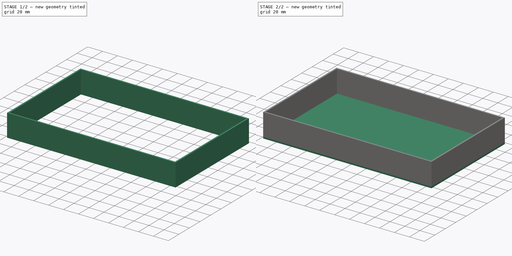
[diagram: build sequence overview — one tinted view per stage of 2, left to right]
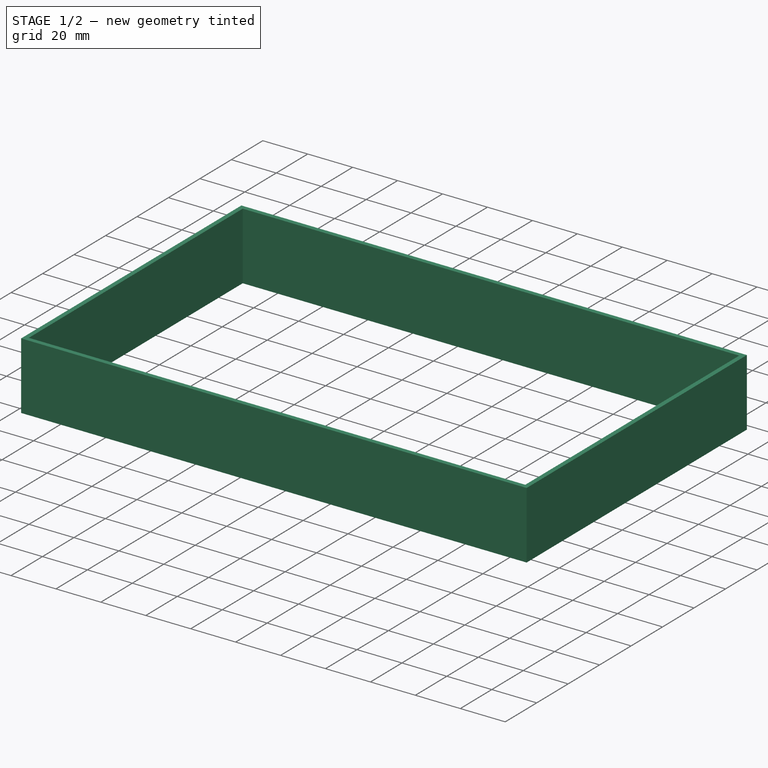
[diagram: stage 1 of 2 — iso view after this stage's code; geometry added in this stage tinted green]
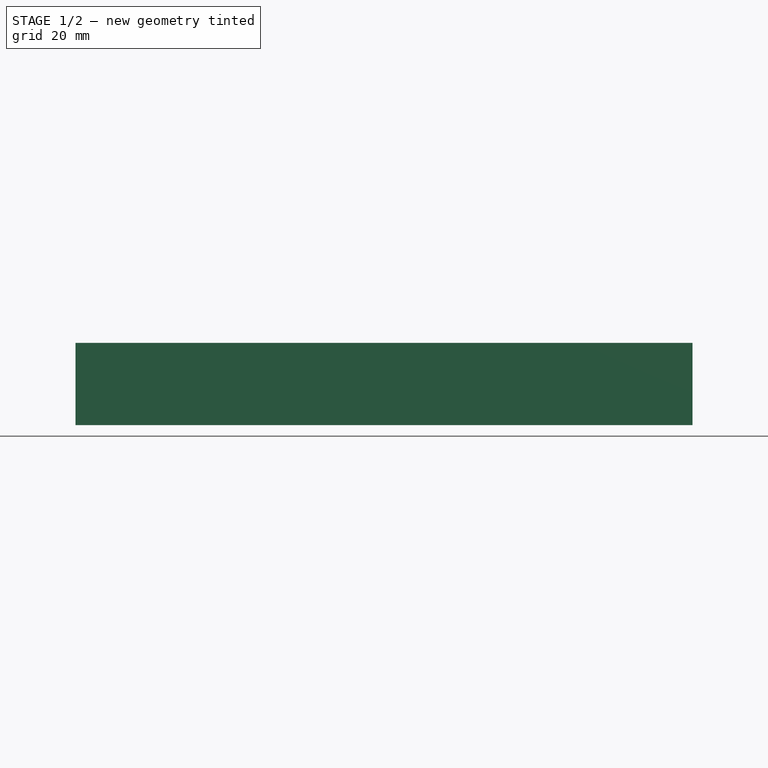
[diagram: stage 1 of 2 — front view after this stage's code; geometry added in this stage tinted green]
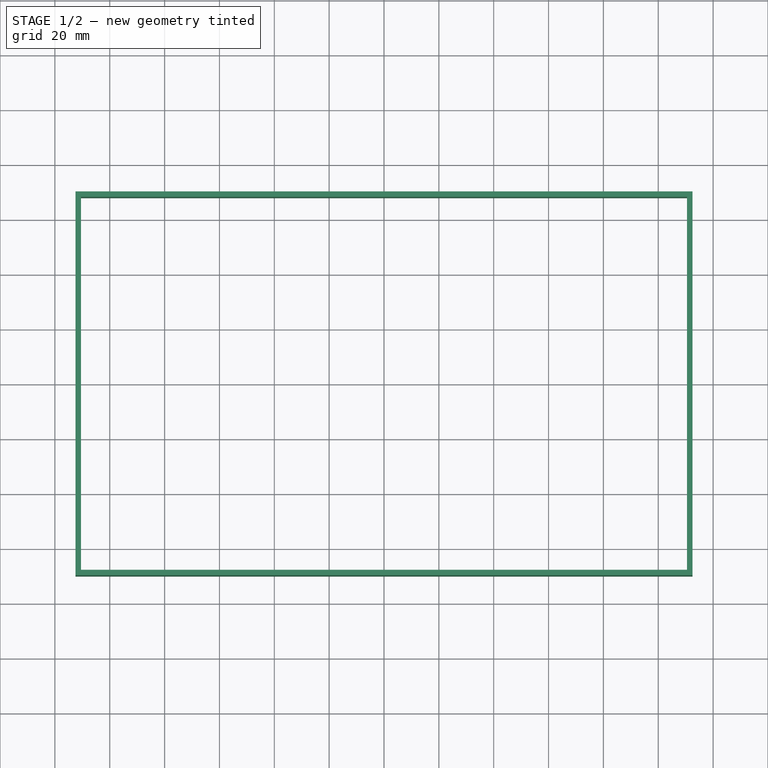
[diagram: stage 1 of 2 — top view after this stage's code; geometry added in this stage tinted green]
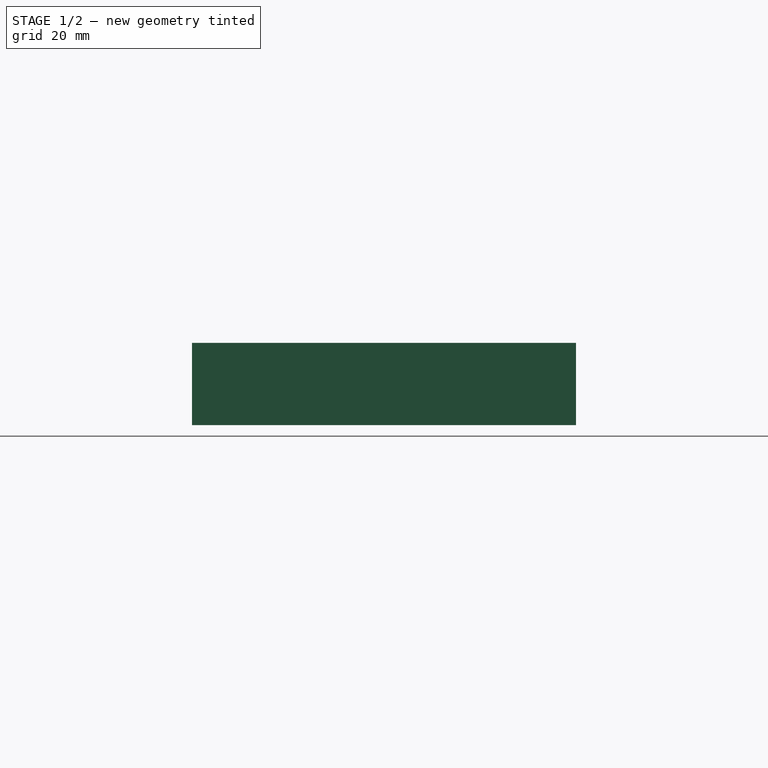
[diagram: stage 1 of 2 — right view after this stage's code; geometry added in this stage tinted green]
FCSTD DOCUMENT  (FreeCAD 0.14R3702 (Git))
Label: car stereo case
License: CC-BY 3.0
LicenseURL: http://creativecommons.org/licenses/by/3.0/
objects: Sketcher::SketchObject×2, PartDesign::Pad×2
note: 6 computed .brp shape members not serialized (recipe doc carries the construction recipe); baked Part::Feature solids carry a one-line shape summary decoded from their .brp

FEATURE [Sketcher::SketchObject] Sketch001  label="sides"
  Placement = pos=(0,0,2) rot=(0,0,1;0rad)
  sketch-geometry (8):
    g0: LineSegment StartX=-112.5 StartY=70 StartZ=0 EndX=112.5 EndY=70 EndZ=0
    g1: LineSegment StartX=112.5 StartY=70 StartZ=0 EndX=112.5 EndY=-70 EndZ=0
    g2: LineSegment StartX=112.5 StartY=-70 StartZ=0 EndX=-112.5 EndY=-70 EndZ=0
    g3: LineSegment StartX=-112.5 StartY=-70 StartZ=0 EndX=-112.5 EndY=70 EndZ=0
    g4: LineSegment StartX=-110.5 StartY=68 StartZ=0 EndX=110.5 EndY=68 EndZ=0
    g5: LineSegment StartX=110.5 StartY=68 StartZ=0 EndX=110.5 EndY=-68 EndZ=0
    g6: LineSegment StartX=110.5 StartY=-68 StartZ=0 EndX=-110.5 EndY=-68 EndZ=0
    g7: LineSegment StartX=-110.5 StartY=-68 StartZ=0 EndX=-110.5 EndY=68 EndZ=0
  constraints (24):
    c: Coincident(g0,g1)
    c: Coincident(g1,g2)
    c: Coincident(g2,g3)
    c: Coincident(g3,g0)
    c: Horizontal(g0)
    c: Horizontal(g2)
    c: Vertical(g1)
    c: Vertical(g3)
    c: Symmetric(g1,g2,g-2)
    c: Symmetric(g0,g2,g-1)
    c: DistanceX(g0) = 225
    c: DistanceY(g1) = -140
    c: Coincident(g4,g5)
    c: Coincident(g5,g6)
    c: Coincident(g6,g7)
    c: Coincident(g7,g4)
    c: Horizontal(g4)
    c: Horizontal(g6)
    c: Vertical(g5)
    c: Vertical(g7)
    c: Symmetric(g5,g6,g-2)
    c: Symmetric(g5,g4,g-1)
    c: DistanceX(g4) = 221
    c: DistanceY(g5) = -136
FEATURE [PartDesign::Pad] Pad001
  Length = 30
  Length2 = 100
  Placement = pos=(0,0,2) rot=(0,0,1;0rad)
  Sketch = -> Sketch001
  Type = 0
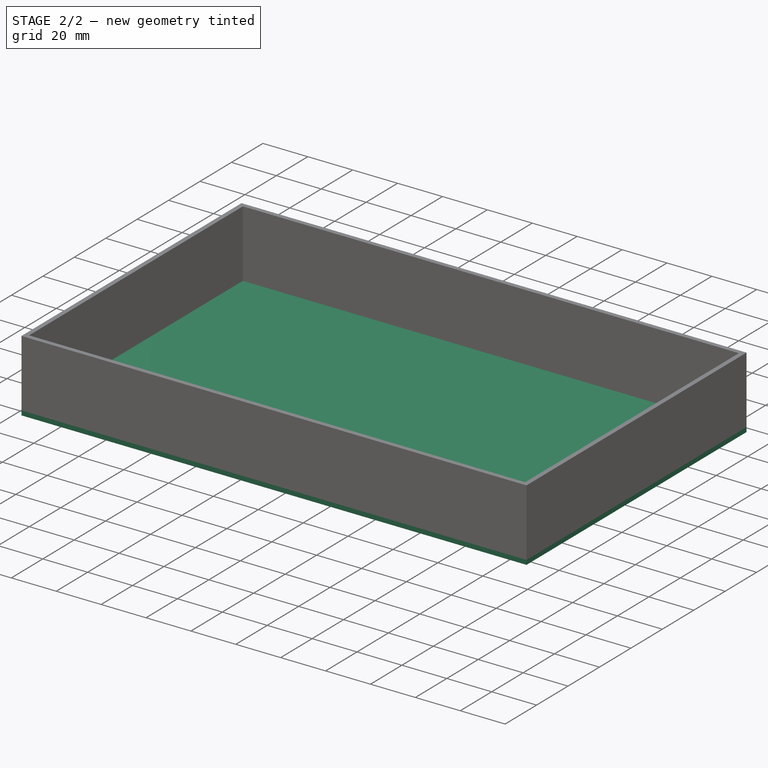
[diagram: stage 2 of 2 — iso view after this stage's code; geometry added in this stage tinted green]
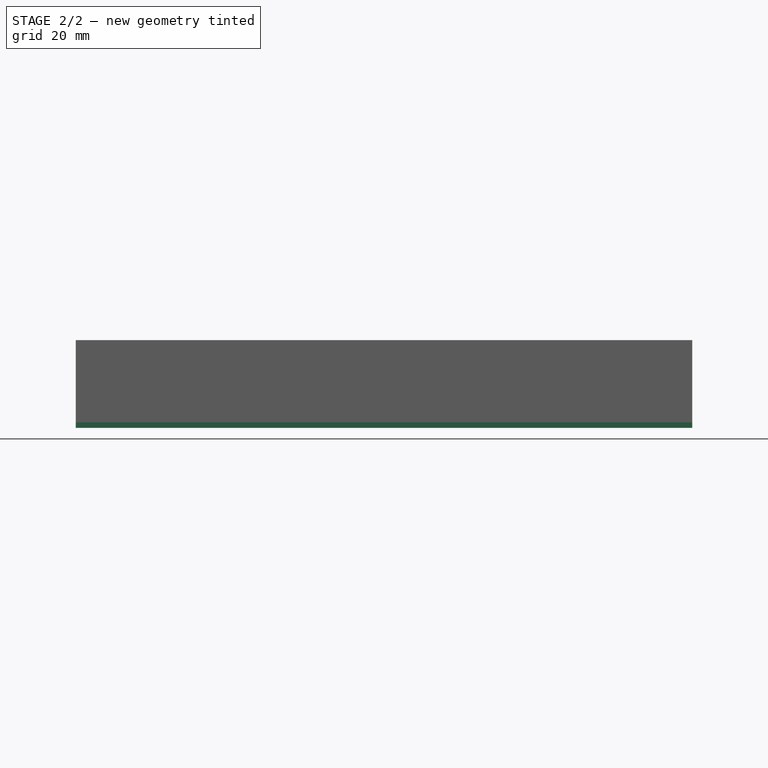
[diagram: stage 2 of 2 — front view after this stage's code; geometry added in this stage tinted green]
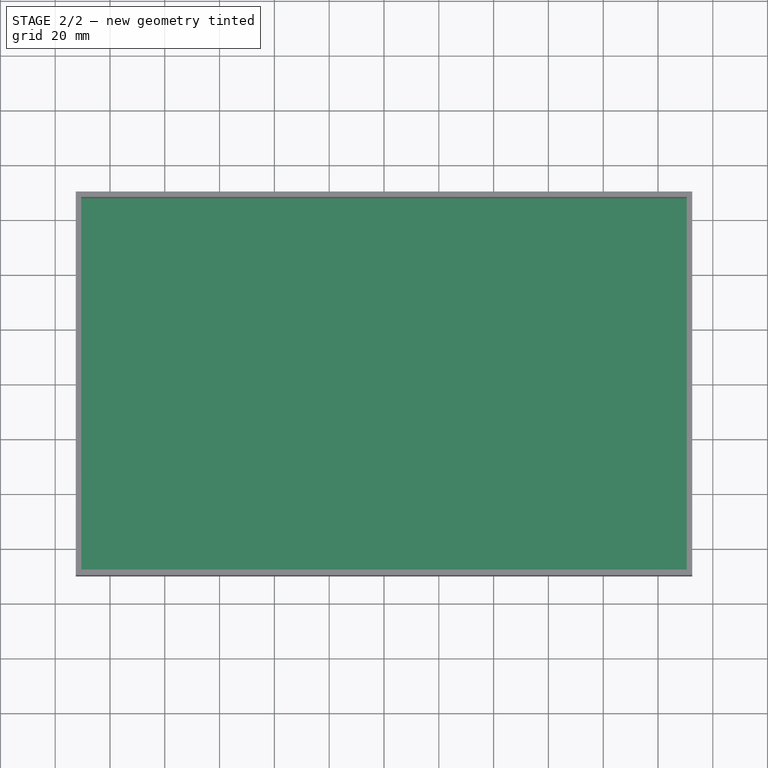
[diagram: stage 2 of 2 — top view after this stage's code; geometry added in this stage tinted green]
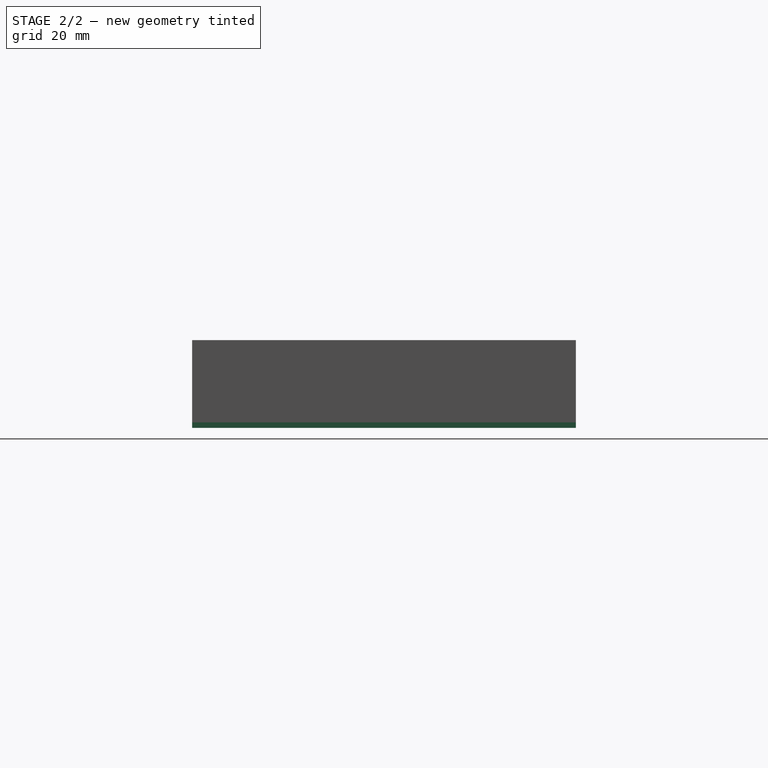
[diagram: stage 2 of 2 — right view after this stage's code; geometry added in this stage tinted green]
FEATURE [Sketcher::SketchObject] Sketch  label="bottom"
  sketch-geometry (4):
    g0: LineSegment StartX=-112.5 StartY=70 StartZ=0 EndX=112.5 EndY=70 EndZ=0
    g1: LineSegment StartX=112.5 StartY=70 StartZ=0 EndX=112.5 EndY=-70 EndZ=0
    g2: LineSegment StartX=112.5 StartY=-70 StartZ=0 EndX=-112.5 EndY=-70 EndZ=0
    g3: LineSegment StartX=-112.5 StartY=-70 StartZ=0 EndX=-112.5 EndY=70 EndZ=0
  constraints (12):
    c: Coincident(g0,g1)
    c: Coincident(g1,g2)
    c: Coincident(g2,g3)
    c: Coincident(g3,g0)
    c: Horizontal(g0)
    c: Horizontal(g2)
    c: Vertical(g1)
    c: Vertical(g3)
    c: Symmetric(g1,g2,g-2)
    c: Symmetric(g0,g2,g-1)
    c: DistanceX(g0) = 225
    c: DistanceY(g1) = -140
FEATURE [PartDesign::Pad] Pad
  Length = 2
  Length2 = 100
  Sketch = -> Sketch
  Type = 0
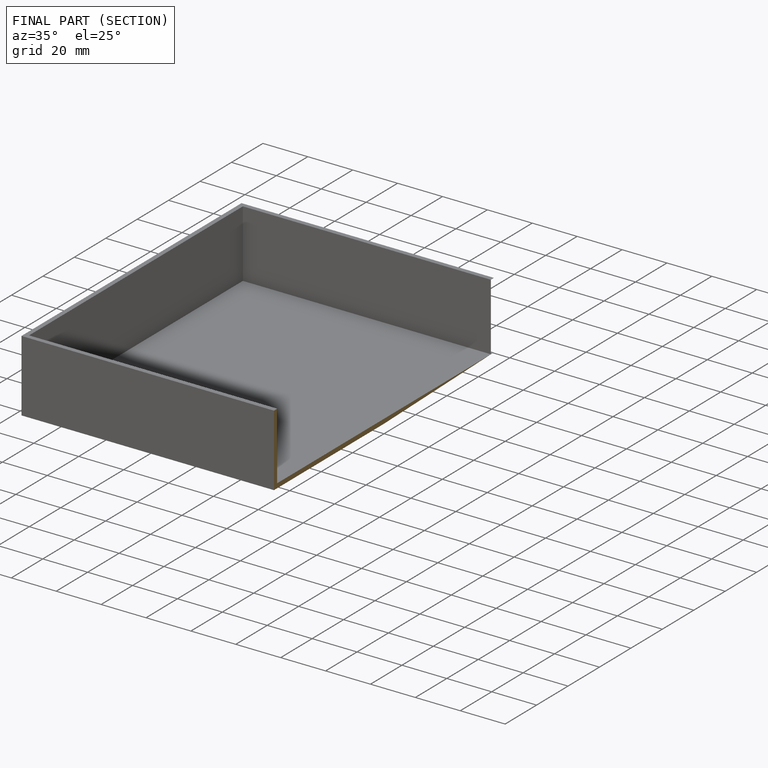
[diagram: finished part — half-section view (interior)]
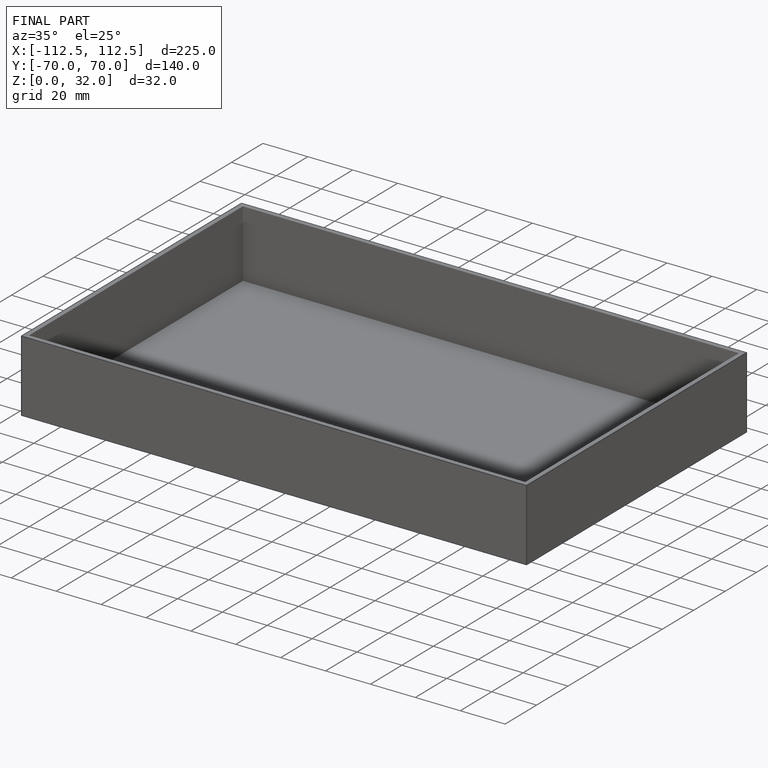
[diagram: finished part — iso view with bounding-box wireframe]
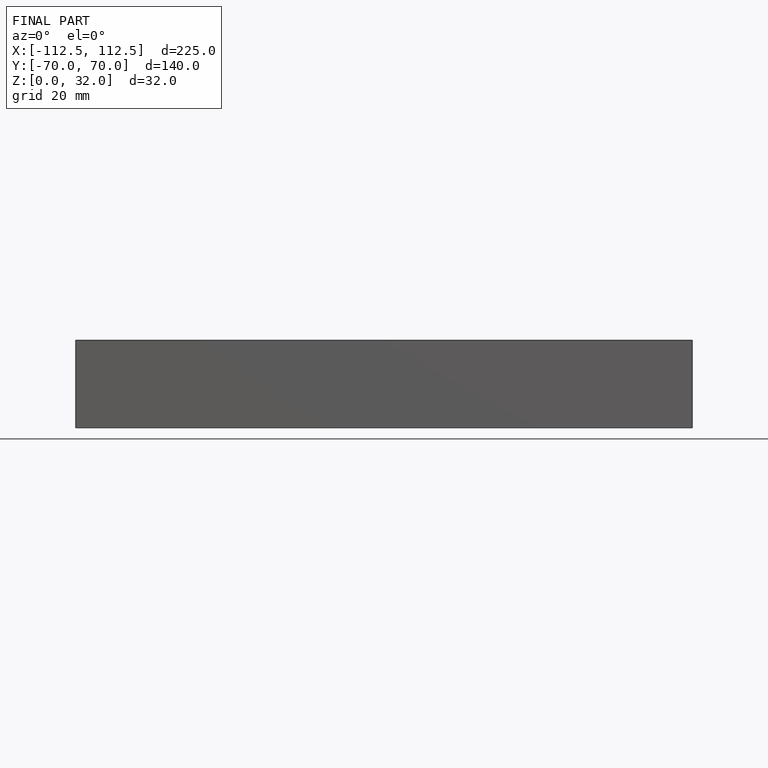
[diagram: finished part — front view with bounding-box wireframe]
